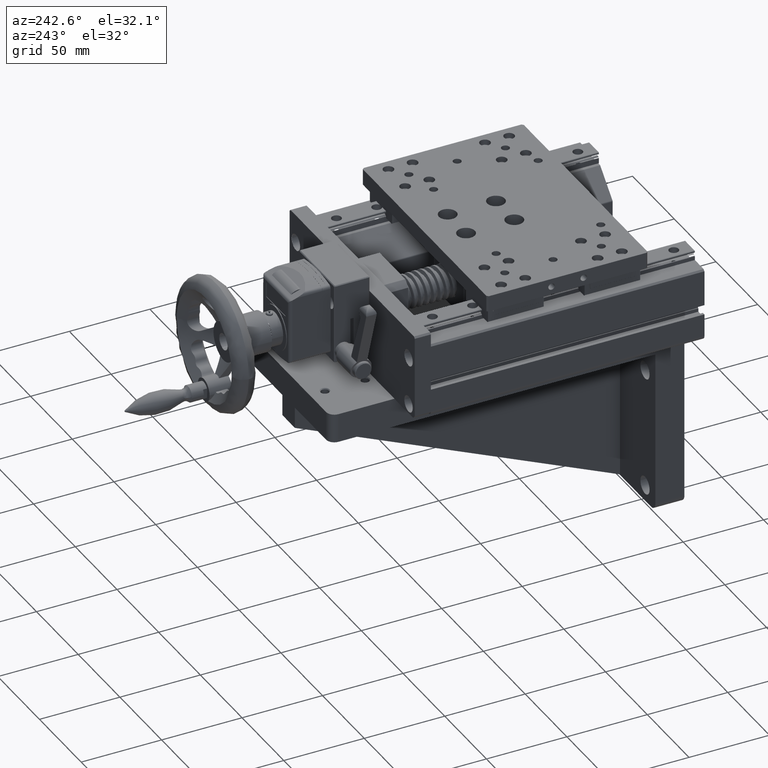
[diagram: clean part render]
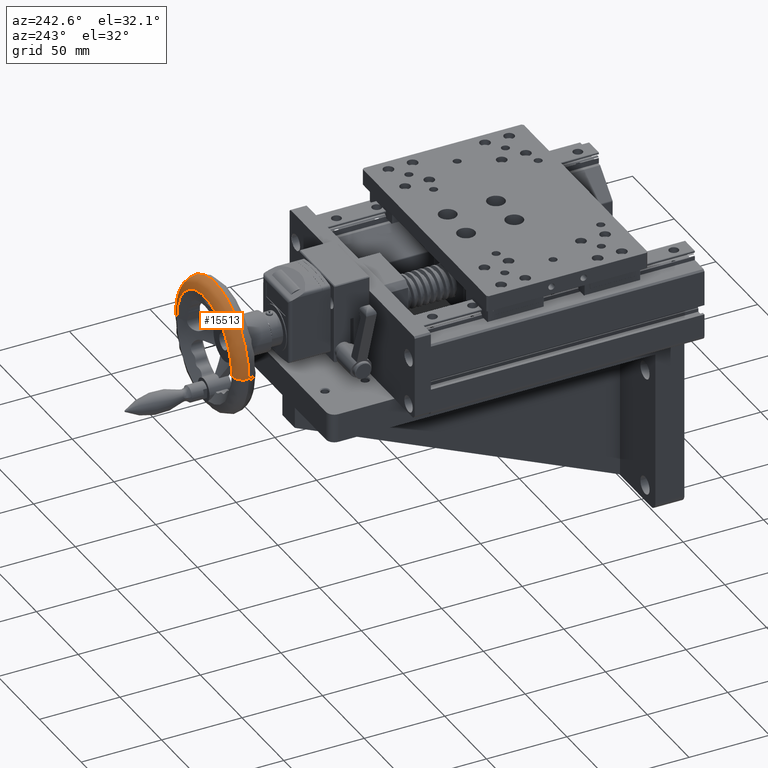
[diagram: same view with one face highlighted and labeled with its STEP entity id]
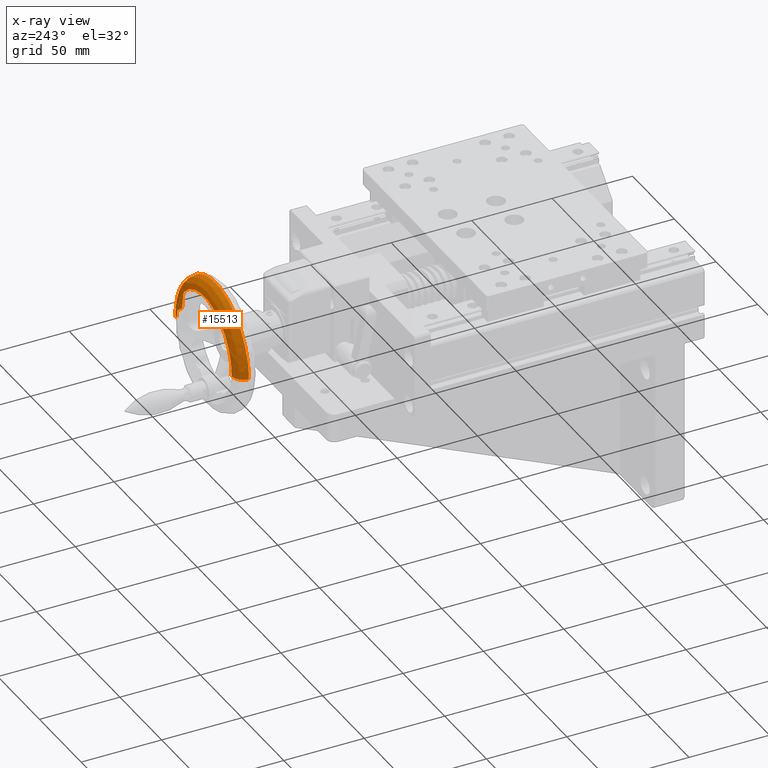
[diagram: x-ray of the same camera — body ghosted, the highlighted face saturated]
A machine part, auxiliary view. The second image highlights one B-rep face of the part: STEP entity #15513.
The next image is the same camera in x-ray: the body ghosted, the highlighted face saturated — about 0% of this face is hidden behind the body in this view.
In plain terms, the highlighted face is a freeform B-spline surface patch.
Its self-contained STEP definition (entity closure, byte-faithful):
#1985 = CARTESIAN_POINT ( 'NONE',  ( 15.41874213237755598, 154.8870353177924812, 173.2333030787897599 ) ) ;
#2641 = VERTEX_POINT ( 'NONE', #10180 ) ;
#2804 = CARTESIAN_POINT ( 'NONE',  ( -61.55997315336338005, 157.7865302544042834, 165.9949636603790850 ) ) ;
#2971 = CARTESIAN_POINT ( 'NONE',  ( -57.30697562317587312, 157.7865302544040276, 157.8719887815188088 ) ) ;
#3543 = DIRECTION ( 'NONE',  ( 0.01868160997700454851, 4.105217362101856930E-16, -0.9998254834963284932 ) ) ;
#4491 = CARTESIAN_POINT ( 'NONE',  ( -63.07276774916838491, 150.7865302544040276, 91.75273560092313119 ) ) ;
#4604 = EDGE_CURVE ( 'NONE', #29892, #16743, #30528, .T. ) ;
#4831 = CARTESIAN_POINT ( 'NONE',  ( -63.07276774916838491, 154.8870353177925949, 91.75273560092315961 ) ) ;
#5085 = DIRECTION ( 'NONE',  ( -0.01868160997700466994, -4.167439622702519724E-16, 0.9998254834963284932 ) ) ;
#5095 = DIRECTION ( 'NONE',  ( 0.9998254834963286042, -8.410780489584513748E-16, 0.01868160997700469075 ) ) ;
#5496 = CIRCLE ( 'NONE', #13522, 7.000000000000007105 ) ;
#5544 = DIRECTION ( 'NONE',  ( -9.293873982808663683E-16, -1.000000000000000000, -4.310705310543604489E-16 ) ) ;
#7345 = FACE_OUTER_BOUND ( 'NONE', #19099, .T. ) ;
#8010 = CARTESIAN_POINT ( 'NONE',  ( 9.914492546063090828, 157.7865302544039139, 93.11649312924447486 ) ) ;
#8753 = DIRECTION ( 'NONE',  ( -0.9998254834963286042, 0.000000000000000000, -0.01868160997700397258 ) ) ;
#8951 = CIRCLE ( 'NONE', #22455, 33.00000000000002132 ) ;
#9556 = CARTESIAN_POINT ( 'NONE',  ( 16.91327093053789454, 154.8870353177924812, 93.24726439908347686 ) ) ;
#10180 = CARTESIAN_POINT ( 'NONE',  ( 9.914492546063122802, 157.7865302544038855, 93.11649312924447486 ) ) ;
#10546 = CARTESIAN_POINT ( 'NONE',  ( -60.17377882227518882, 157.7865302544043118, 91.80690283445922262 ) ) ;
#10715 = CARTESIAN_POINT ( 'NONE',  ( -56.07398936469357409, 157.7865302544040276, 91.88350687076216161 ) ) ;
#13522 = AXIS2_PLACEMENT_3D ( 'NONE', #25670, #5085, #18081 ) ;
#14724 = VERTEX_POINT ( 'NONE', #16124 ) ;
#15046 =( BOUNDED_SURFACE ( )  B_SPLINE_SURFACE ( 3, 3, ( 
 ( #27616, #32473, #19693, #4491 ),
 ( #9556, #1985, #27961, #4831 ),
 ( #25394, #17984, #2804, #10546 ),
 ( #8010, #18316, #2971, #10715 ) ),
 .UNSPECIFIED., .F., .F., .F. ) 
 B_SPLINE_SURFACE_WITH_KNOTS ( ( 4, 4 ),
 ( 4, 4 ),
 ( 0.000000000000000000, 1.000000000000000000 ),
 ( 0.000000000000000000, 1.000000000000000000 ),
 .UNSPECIFIED. ) 
 GEOMETRIC_REPRESENTATION_ITEM ( )  RATIONAL_B_SPLINE_SURFACE ( (
 ( 1.000000000000000000, 0.3333333333333334259, 0.3333333333333334259, 1.000000000000000000),
 ( 0.8047378541243481731, 0.2682459513747827984, 0.2682459513747827984, 0.8047378541243481731),
 ( 0.8047378541243481731, 0.2682459513747827984, 0.2682459513747827984, 0.8047378541243481731),
 ( 1.000000000000000000, 0.3333333333333334259, 0.3333333333333334259, 1.000000000000000000) ) ) 
 REPRESENTATION_ITEM ( '' )  SURFACE ( )  );
#15513 = ADVANCED_FACE ( 'NONE', ( #7345 ), #15046, .T. ) ;
#15516 = ORIENTED_EDGE ( 'NONE', *, *, #20613, .T. ) ;
#15693 = CARTESIAN_POINT ( 'NONE',  ( -56.07398936469358119, 157.7865302544039423, 91.88350687076216161 ) ) ;
#16124 = CARTESIAN_POINT ( 'NONE',  ( 16.91327093053789454, 150.7865302544039139, 93.24726439908350528 ) ) ;
#16743 = VERTEX_POINT ( 'NONE', #15693 ) ;
#17984 = CARTESIAN_POINT ( 'NONE',  ( 12.62808767255651787, 157.7865302544041697, 167.3811579914673189 ) ) ;
#18081 = DIRECTION ( 'NONE',  ( 0.9998254834963286042, 0.000000000000000000, 0.01868160997700396217 ) ) ;
#18316 = CARTESIAN_POINT ( 'NONE',  ( 8.681506287580779357, 157.7865302544038855, 159.1049750400011078 ) ) ;
#19099 = EDGE_LOOP ( 'NONE', ( #31842, #32385, #15516, #21254 ) ) ;
#19693 = CARTESIAN_POINT ( 'NONE',  ( -64.56729654732875190, 150.7865302544039992, 171.7387742806294000 ) ) ;
#20613 = EDGE_CURVE ( 'NONE', #14724, #2641, #5496, .T. ) ;
#21065 = DIRECTION ( 'NONE',  ( 0.9998254834963284932, -6.938893903907228378E-16, 0.01868160997700457626 ) ) ;
#21254 = ORIENTED_EDGE ( 'NONE', *, *, #22452, .T. ) ;
#21923 = CIRCLE ( 'NONE', #30516, 40.00000000000000000 ) ;
#22452 = EDGE_CURVE ( 'NONE', #2641, #16743, #8951, .T. ) ;
#22455 = AXIS2_PLACEMENT_3D ( 'NONE', #22993, #25679, #5095 ) ;
#22822 = EDGE_CURVE ( 'NONE', #14724, #29892, #21923, .T. ) ;
#22993 = CARTESIAN_POINT ( 'NONE',  ( -23.07974840931524341, 157.7865302544039139, 92.50000000000331113 ) ) ;
#23451 = CARTESIAN_POINT ( 'NONE',  ( -23.07974840931525051, 150.7865302544039423, 92.50000000000331113 ) ) ;
#23572 = AXIS2_PLACEMENT_3D ( 'NONE', #31198, #3543, #8753 ) ;
#25394 = CARTESIAN_POINT ( 'NONE',  ( 14.01428200364471266, 157.7865302544041981, 93.19309716554741385 ) ) ;
#25670 = CARTESIAN_POINT ( 'NONE',  ( 9.914492546063586431, 150.7865302544039139, 93.11649312924447486 ) ) ;
#25679 = DIRECTION ( 'NONE',  ( -9.293873982808663683E-16, -1.000000000000000000, -4.310705310543604489E-16 ) ) ;
#27616 = CARTESIAN_POINT ( 'NONE',  ( 16.91327093053789454, 150.7865302544039139, 93.24726439908350528 ) ) ;
#27961 = CARTESIAN_POINT ( 'NONE',  ( -64.56729654732872348, 154.8870353177925949, 171.7387742806293716 ) ) ;
#29892 = VERTEX_POINT ( 'NONE', #31237 ) ;
#30516 = AXIS2_PLACEMENT_3D ( 'NONE', #23451, #5544, #21065 ) ;
#30528 = CIRCLE ( 'NONE', #23572, 7.000000000000003553 ) ;
#31198 = CARTESIAN_POINT ( 'NONE',  ( -56.07398936469407857, 150.7865302544040276, 91.88350687076214740 ) ) ;
#31237 = CARTESIAN_POINT ( 'NONE',  ( -63.07276774916839912, 150.7865302544039707, 91.75273560092311698 ) ) ;
#31842 = ORIENTED_EDGE ( 'NONE', *, *, #4604, .F. ) ;
#32385 = ORIENTED_EDGE ( 'NONE', *, *, #22822, .F. ) ;
#32473 = CARTESIAN_POINT ( 'NONE',  ( 15.41874213237753111, 150.7865302544038855, 173.2333030787897599 ) ) ;